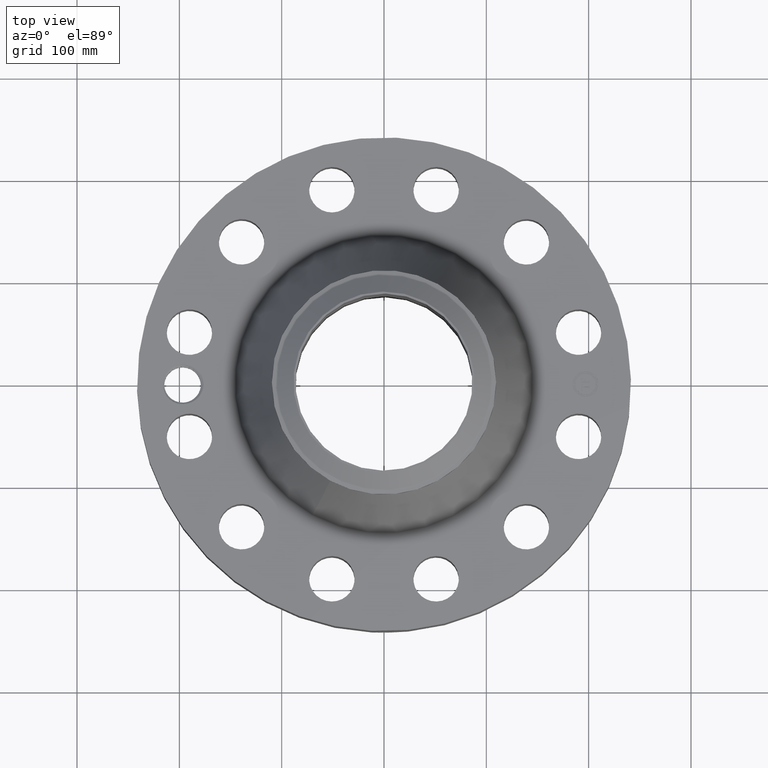
[diagram: clean part render]
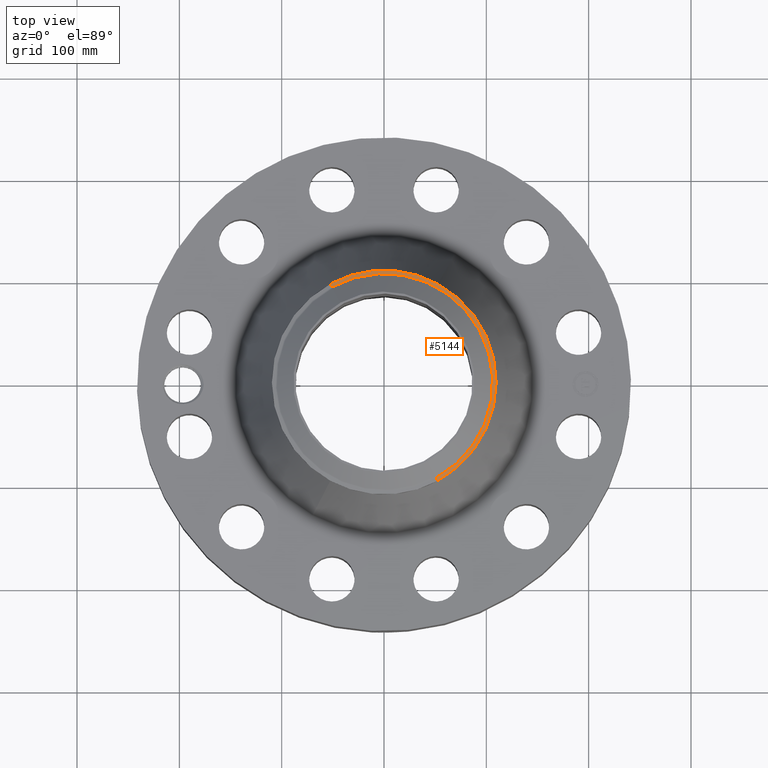
[diagram: same view with one face highlighted and labeled with its STEP entity id]
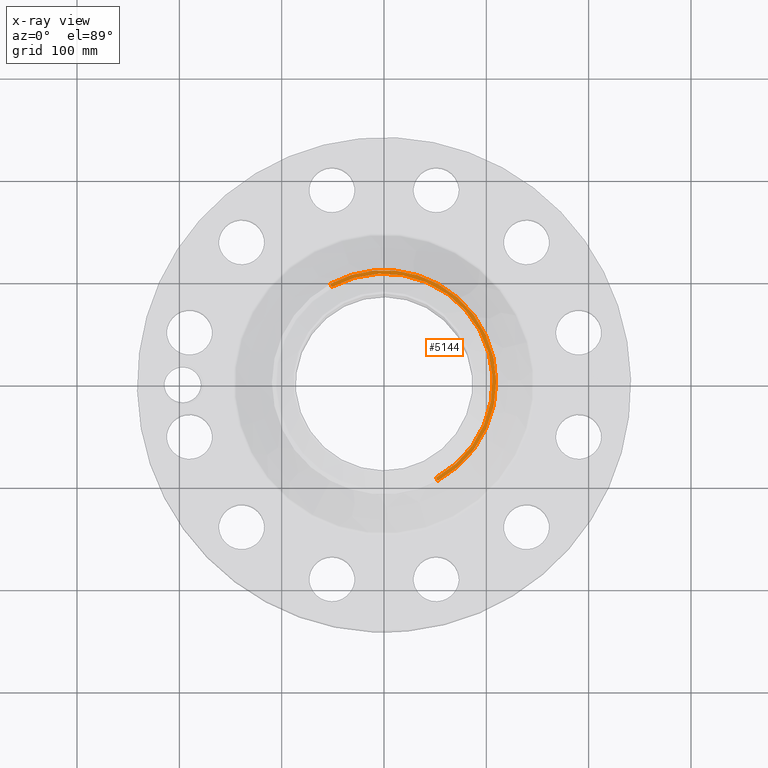
[diagram: x-ray of the same camera — body ghosted, the highlighted face saturated]
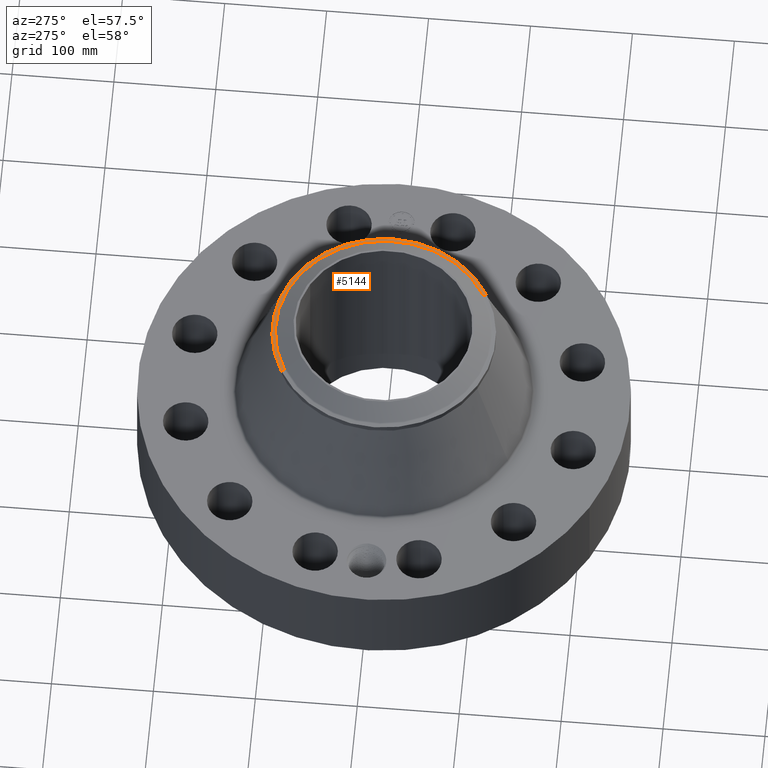
[diagram: same view with one face highlighted and labeled with its STEP entity id]
A machine part, top view. The second image highlights one B-rep face of the part: STEP entity #5144.
The next image is the same camera in x-ray: the body ghosted, the highlighted face saturated — about 0% of this face is hidden behind the body in this view.
A second angle (auxiliary view) of the same face is appended — the face is thin or edge-on in the first view.
In plain terms, the highlighted conical surface has half-angle 80 deg.
Its self-contained STEP definition (entity closure, byte-faithful):
#3664=AXIS2_PLACEMENT_3D('Circle Axis2P3D',#3662,#3663,$) ;
#3691=AXIS2_PLACEMENT_3D('Circle Axis2P3D',#3689,#3690,$) ;
#4503=AXIS2_PLACEMENT_3D('Circle Axis2P3D',#4501,#4502,$) ;
#5125=AXIS2_PLACEMENT_3D('Cone Axis2P3D',#5122,#5123,#5124) ;
#3659=CARTESIAN_POINT('Vertex',(2.06872119909,3.78676875457,8.08813976632)) ;
#3662=CARTESIAN_POINT('Axis2P3D Location',(0.,0.,8.08813976632)) ;
#3666=CARTESIAN_POINT('Vertex',(2.06872119909,-3.78676875457,8.08813976632)) ;
#3686=CARTESIAN_POINT('Vertex',(-2.06872119909,3.78676875457,8.08813976632)) ;
#3689=CARTESIAN_POINT('Axis2P3D Location',(0.,0.,8.08813976632)) ;
#4479=CARTESIAN_POINT('Vertex',(-2.00543406031,3.6709224241,8.11141601925)) ;
#4486=CARTESIAN_POINT('Vertex',(2.00543406031,-3.6709224241,8.11141601925)) ;
#4501=CARTESIAN_POINT('Axis2P3D Location',(0.,0.,8.11141601925)) ;
#5122=CARTESIAN_POINT('Axis2P3D Location',(0.,0.,8.11141601925)) ;
#5127=CARTESIAN_POINT('Line Origine',(-2.0370776297,3.72884558934,8.09977789279)) ;
#5132=CARTESIAN_POINT('Line Origine',(2.0370776297,-3.72884558934,8.09977789279)) ;
#3663=DIRECTION('Axis2P3D Direction',(0.,0.,-0.0393700787402)) ;
#3690=DIRECTION('Axis2P3D Direction',(0.,0.,-0.0393700787402)) ;
#4502=DIRECTION('Axis2P3D Direction',(0.,0.,0.0393700787402)) ;
#5123=DIRECTION('Axis2P3D Direction',(-0.,-0.,-0.0393700787402)) ;
#5124=DIRECTION('Axis2P3D XDirection',(0.0188750212049,-0.0345504945626,0.)) ;
#5128=DIRECTION('Vector Direction',(-0.0185882672208,0.0340255949157,-0.00683654242783)) ;
#5133=DIRECTION('Vector Direction',(0.0185882672208,-0.0340255949157,-0.00683654242783)) ;
#5129=VECTOR('Line Direction',#5128,0.0393700787402) ;
#5134=VECTOR('Line Direction',#5133,0.0393700787402) ;
#5138=ORIENTED_EDGE('',*,*,#5131,.F.) ;
#5139=ORIENTED_EDGE('',*,*,#4505,.F.) ;
#5140=ORIENTED_EDGE('',*,*,#5136,.T.) ;
#5141=ORIENTED_EDGE('',*,*,#3668,.T.) ;
#5142=ORIENTED_EDGE('',*,*,#3693,.F.) ;
#5144=ADVANCED_FACE('PartBody',(#5143),#5126,.T.) ;
#3665=CIRCLE('generated circle',#3664,4.31500000002) ;
#3692=CIRCLE('generated circle',#3691,4.31500000002) ;
#4504=CIRCLE('generated circle',#4503,4.18299380994) ;
#5126=CONICAL_SURFACE('Cone',#5125,4.18299380994,1.3962634016) ;
#3668=EDGE_CURVE('',#3667,#3660,#3665,.F.) ;
#3693=EDGE_CURVE('',#3687,#3660,#3692,.T.) ;
#4505=EDGE_CURVE('',#4487,#4480,#4504,.T.) ;
#5131=EDGE_CURVE('',#4480,#3687,#5130,.T.) ;
#5136=EDGE_CURVE('',#4487,#3667,#5135,.T.) ;
#5137=EDGE_LOOP('',(#5138,#5139,#5140,#5141,#5142)) ;
#5143=FACE_OUTER_BOUND('',#5137,.T.) ;
#5130=LINE('Line',#5127,#5129) ;
#5135=LINE('Line',#5132,#5134) ;
#3660=VERTEX_POINT('',#3659) ;
#3667=VERTEX_POINT('',#3666) ;
#3687=VERTEX_POINT('',#3686) ;
#4480=VERTEX_POINT('',#4479) ;
#4487=VERTEX_POINT('',#4486) ;